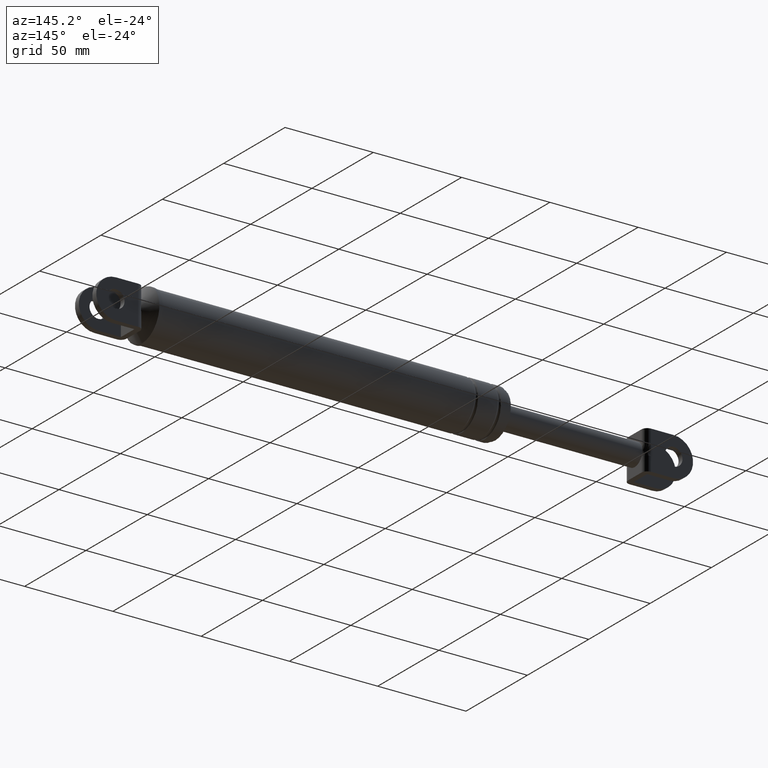
[diagram: clean part render]
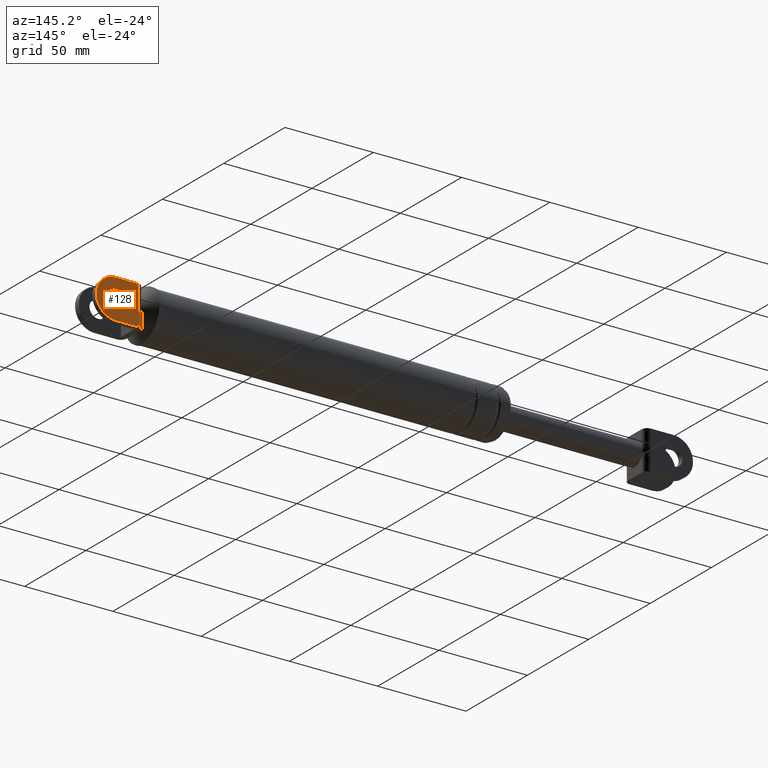
[diagram: same view with one face highlighted and labeled with its STEP entity id]
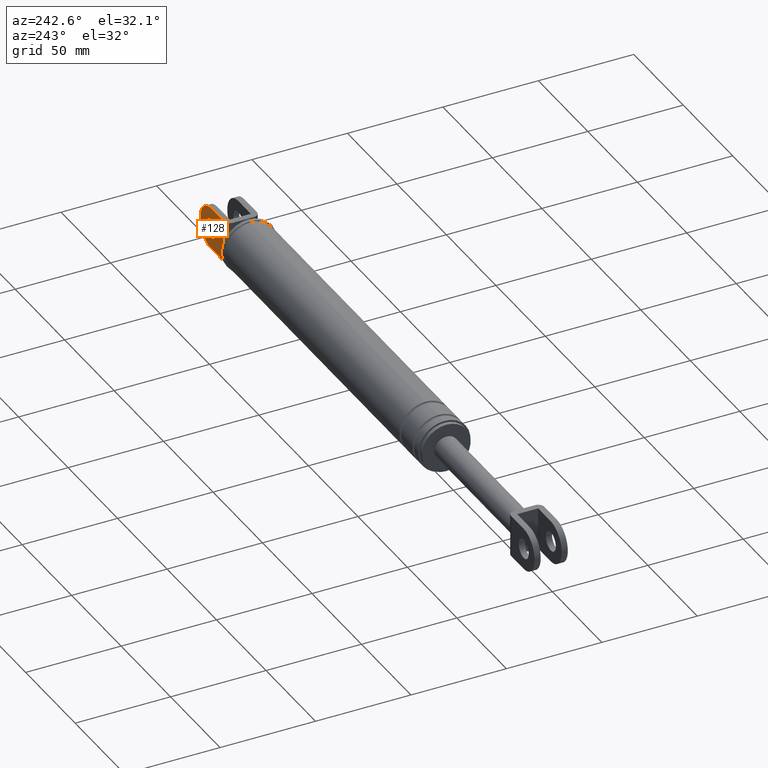
[diagram: same view with one face highlighted and labeled with its STEP entity id]
A machine part, auxiliary view. The second image highlights one B-rep face of the part: STEP entity #128.
A second angle (auxiliary view) of the same face is appended — the face is thin or edge-on in the first view.
In plain terms, the highlighted planar face has unit normal (0, 1, 0).
Its self-contained STEP definition (entity closure, byte-faithful):
#128=ADVANCED_FACE('',(#340,#341),#339,.T.);
#339=PLANE('',#1320);
#340=FACE_OUTER_BOUND('',#1321,.T.);
#341=FACE_BOUND('',#1322,.T.);
#1317=CARTESIAN_POINT('',(3.62948174188E+002,8.69999700000E+000,2.01014502348E+002));
#1318=DIRECTION('',(-0.00000000000E+000,1.00000000000E+000,0.00000000000E+000));
#1319=DIRECTION('',(1.00000000000E+000,0.00000000000E+000,0.00000000000E+000));
#1320=AXIS2_PLACEMENT_3D('',#1317,#1318,#1319);
#1321=EDGE_LOOP('',(#2006,#2007,#2008,#2009,#2010,#2011));
#1322=EDGE_LOOP('',(#2012,#2013));
#2006=ORIENTED_EDGE('',*,*,#2277,.T.);
#2007=ORIENTED_EDGE('',*,*,#2260,.T.);
#2008=ORIENTED_EDGE('',*,*,#2257,.T.);
#2009=ORIENTED_EDGE('',*,*,#2285,.T.);
#2010=ORIENTED_EDGE('',*,*,#2280,.F.);
#2011=ORIENTED_EDGE('',*,*,#2243,.F.);
#2012=ORIENTED_EDGE('',*,*,#2297,.T.);
#2013=ORIENTED_EDGE('',*,*,#2298,.T.);
#2243=EDGE_CURVE('',#2405,#2412,#2413,.T.);
#2257=EDGE_CURVE('',#2487,#2502,#2509,.T.);
#2260=EDGE_CURVE('',#2516,#2487,#2529,.T.);
#2277=EDGE_CURVE('',#2405,#2516,#2642,.T.);
#2280=EDGE_CURVE('',#2412,#2660,#2661,.T.);
#2285=EDGE_CURVE('',#2502,#2660,#2692,.T.);
#2297=EDGE_CURVE('',#2774,#2775,#2776,.T.);
#2298=EDGE_CURVE('',#2775,#2774,#2782,.T.);
#2405=VERTEX_POINT('',#3437);
#2412=VERTEX_POINT('',#3441);
#2413=CIRCLE('',#3445,1.10000000000E+001);
#2487=VERTEX_POINT('',#3488);
#2502=VERTEX_POINT('',#3499);
#2509=(BOUNDED_CURVE() B_SPLINE_CURVE(3,(#3504,#3505,#3506,#3507,#3508,#3509,#3510,#3511,#3512,#3513),.UNSPECIFIED.,.F.,.F.) B_SPLINE_CURVE_WITH_KNOTS((4,2,2,2,4),(0.00000000000E+000,1.19940700729E-003,2.39881401459E-003,3.59822102188E-003,4.79762802917E-003),.UNSPECIFIED.) CURVE() GEOMETRIC_REPRESENTATION_ITEM() RATIONAL_B_SPLINE_CURVE((1.00000000000E+000,1.00000000000E+000,1.00000000000E+000,1.00000000000E+000,1.00000000000E+000,1.00000000000E+000,1.00000000000E+000,1.00000000000E+000,1.00000000000E+000,1.00000000000E+000)) REPRESENTATION_ITEM('') );
#2516=VERTEX_POINT('',#3515);
#2529=LINE('',#3523,#3524);
#2642=LINE('',#3599,#3600);
#2660=VERTEX_POINT('',#3608);
#2661=LINE('',#3609,#3610);
#2692=LINE('',#3626,#3627);
#2774=VERTEX_POINT('',#3682);
#2775=VERTEX_POINT('',#3683);
#2776=CIRCLE('',#3687,5.00000000000E+000);
#2782=CIRCLE('',#3691,5.00000000000E+000);
#3437=CARTESIAN_POINT('',(3.78171412952E+002,8.69999700000E+000,1.76814501197E+002));
#3441=CARTESIAN_POINT('',(3.78171412952E+002,8.69999700000E+000,1.98814501197E+002));
#3442=CARTESIAN_POINT('',(3.78171413912E+002,8.69999700000E+000,1.87814501197E+002));
#3443=DIRECTION('',(0.00000000000E+000,-1.00000000000E+000,-0.00000000000E+000));
#3444=DIRECTION('',(-8.72664508346E-008,0.00000000000E+000,-1.00000000000E+000));
#3445=AXIS2_PLACEMENT_3D('',#3442,#3443,#3444);
#3488=CARTESIAN_POINT('',(3.65371413912E+002,8.69999700000E+000,1.85416578554E+002));
#3499=CARTESIAN_POINT('',(3.65371413912E+002,8.69999700000E+000,1.90212423839E+002));
#3504=CARTESIAN_POINT('',(3.65371413912E+002,8.69999700000E+000,1.85416578554E+002));
#3505=CARTESIAN_POINT('',(3.65371413912E+002,8.69999700000E+000,1.85816454682E+002));
#3506=CARTESIAN_POINT('',(3.65359779216E+002,8.69999700000E+000,1.86216107261E+002));
#3507=CARTESIAN_POINT('',(3.65339915744E+002,8.69999700000E+000,1.87015477860E+002));
#3508=CARTESIAN_POINT('',(3.65332105072E+002,8.69999700000E+000,1.87415236067E+002));
#3509=CARTESIAN_POINT('',(3.65332114059E+002,8.69999700000E+000,1.88214548147E+002));
#3510=CARTESIAN_POINT('',(3.65339929641E+002,8.69999700000E+000,1.88614123743E+002));
#3511=CARTESIAN_POINT('',(3.65359788567E+002,8.69999700000E+000,1.89413231393E+002));
#3512=CARTESIAN_POINT('',(3.65371413912E+002,8.69999700000E+000,1.89812767753E+002));
#3513=CARTESIAN_POINT('',(3.65371413912E+002,8.69999700000E+000,1.90212423839E+002));
#3515=CARTESIAN_POINT('',(3.65371413912E+002,8.69999700000E+000,1.76814501197E+002));
#3523=CARTESIAN_POINT('',(3.65371413912E+002,8.69999700000E+000,1.76814501197E+002));
#3524=VECTOR('',#3525,8.60207735738E+000);
#3525=DIRECTION('',(0.00000000000E+000,0.00000000000E+000,1.00000000000E+000));
#3599=CARTESIAN_POINT('',(3.78171412952E+002,8.69999700000E+000,1.76814501197E+002));
#3600=VECTOR('',#3601,1.27999990401E+001);
#3601=DIRECTION('',(-1.00000000000E+000,0.00000000000E+000,0.00000000000E+000));
#3608=CARTESIAN_POINT('',(3.65371413912E+002,8.69999700000E+000,1.98814501197E+002));
#3609=CARTESIAN_POINT('',(3.78171412952E+002,8.69999700000E+000,1.98814501197E+002));
#3610=VECTOR('',#3611,1.27999990401E+001);
#3611=DIRECTION('',(-1.00000000000E+000,0.00000000000E+000,0.00000000000E+000));
#3626=CARTESIAN_POINT('',(3.65371413912E+002,8.69999700000E+000,1.90212423839E+002));
#3627=VECTOR('',#3628,8.60207735738E+000);
#3628=DIRECTION('',(0.00000000000E+000,0.00000000000E+000,1.00000000000E+000));
#3682=CARTESIAN_POINT('',(3.78171413912E+002,8.69999700000E+000,1.82814501197E+002));
#3683=CARTESIAN_POINT('',(3.78171413912E+002,8.69999700000E+000,1.92814501197E+002));
#3684=CARTESIAN_POINT('',(3.78171413912E+002,8.69999700000E+000,1.87814501197E+002));
#3685=DIRECTION('',(-1.25607396695E-016,-1.00000000000E+000,0.00000000000E+000));
#3686=DIRECTION('',(-0.00000000000E+000,-0.00000000000E+000,-1.00000000000E+000));
#3687=AXIS2_PLACEMENT_3D('',#3684,#3685,#3686);
#3688=CARTESIAN_POINT('',(3.78171413912E+002,8.69999700000E+000,1.87814501197E+002));
#3689=DIRECTION('',(-1.25607396695E-016,-1.00000000000E+000,0.00000000000E+000));
#3690=DIRECTION('',(-0.00000000000E+000,-0.00000000000E+000,-1.00000000000E+000));
#3691=AXIS2_PLACEMENT_3D('',#3688,#3689,#3690);